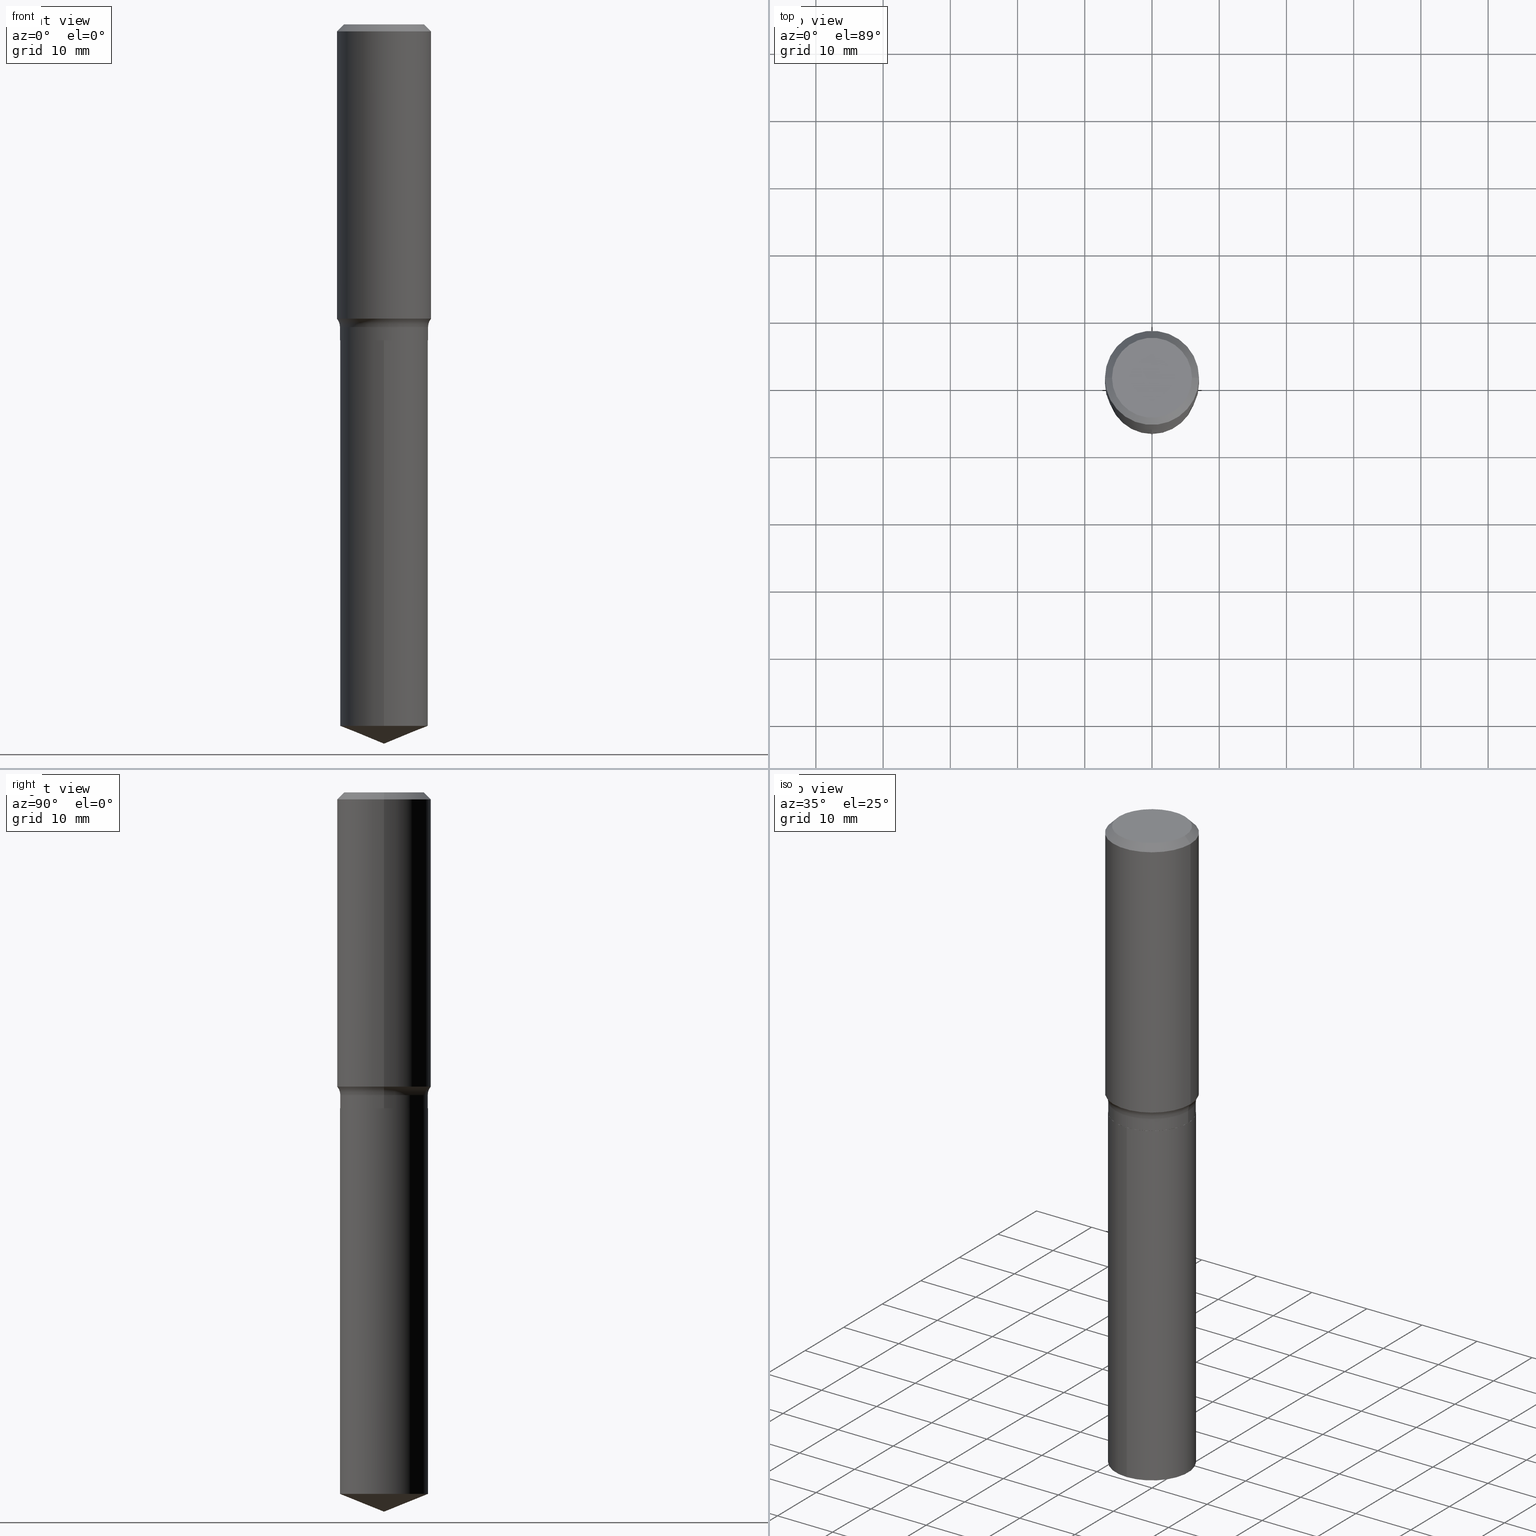
[diagram: canonical four-view strip — front | top / right | iso, engineering-drawing reading convention]
A machine part, canonical four-view strip (front | top / right | iso — engineering-drawing reading convention). The complete STEP part file that produces these views, byte-faithful:
ISO-10303-21;
HEADER;
FILE_DESCRIPTION (( 'STEP AP203' ),
    '1' );
FILE_NAME ('56829.STEP',
    '2024-04-19T14:13:09',
    ( '' ),
    ( '' ),
    'SwSTEP 2.0',
    'SolidWorks 2023',
    '' );
FILE_SCHEMA (( 'CONFIG_CONTROL_DESIGN' ));
ENDSEC;

DATA;
#1 = DIRECTION ( 'NONE',  ( 1.000000000000000000, -6.982962677686267499E-15, 0.000000000000000000 ) ) ;
#2 = SHAPE_DEFINITION_REPRESENTATION ( #178, #310 ) ;
#3 =( NAMED_UNIT ( * ) SI_UNIT ( $, .STERADIAN. ) SOLID_ANGLE_UNIT ( ) );
#4 = ORIENTED_EDGE ( 'NONE', *, *, #441, .F. ) ;
#5 = LINE ( 'NONE', #451, #53 ) ;
#6 = ADVANCED_FACE ( 'NONE', ( #456 ), #71, .T. ) ;
#7 = AXIS2_PLACEMENT_3D ( 'NONE', #192, #489, #1 ) ;
#8 = AXIS2_PLACEMENT_3D ( 'NONE', #478, #477, #404 ) ;
#9 = CARTESIAN_POINT ( 'NONE',  ( 1.010956804476941697E-30, -1.443378385477765070E-16, -0.04134000000000025155 ) ) ;
#10 = COORDINATED_UNIVERSAL_TIME_OFFSET ( 5, 0, .BEHIND. ) ;
#11 = DIRECTION ( 'NONE',  ( -2.445468806185136597E-29, 3.491481338843145583E-15, 1.000000000000000000 ) ) ;
#12 = DATE_AND_TIME ( #51, #295 ) ;
#13 = CARTESIAN_POINT ( 'NONE',  ( 1.831779172789583057E-15, 0.2577999999999935343, -1.850400000000001377 ) ) ;
#14 = VECTOR ( 'NONE', #120, 39.37007874015748143 ) ;
#15 = CC_DESIGN_APPROVAL ( #415, ( #95 ) ) ;
#16 = CARTESIAN_POINT ( 'NONE',  ( -1.002970424325033577E-46, 1.431975951230896486E-32, 4.101342130344485961E-18 ) ) ;
#17 = DIRECTION ( 'NONE',  ( 1.000000000000000000, -6.982962677686266711E-15, 0.000000000000000000 ) ) ;
#18 = DIRECTION ( 'NONE',  ( 1.000000000000000000, -6.982962677686267499E-15, 0.000000000000000000 ) ) ;
#19 = ADVANCED_FACE ( 'NONE', ( #375 ), #381, .F. ) ;
#20 = AXIS2_PLACEMENT_3D ( 'NONE', #16, #96, #247 ) ;
#21 = DIRECTION ( 'NONE',  ( -2.445468806185136877E-29, 3.491481338843145188E-15, 1.000000000000000000 ) ) ;
#22 = CARTESIAN_POINT ( 'NONE',  ( 4.214770417940949508E-29, -6.017575126916126124E-15, -1.723502016170009643 ) ) ;
#23 = ORIENTED_EDGE ( 'NONE', *, *, #475, .T. ) ;
#24 = ADVANCED_FACE ( 'NONE', ( #276 ), #313, .T. ) ;
#25 = DIRECTION ( 'NONE',  ( 1.000000000000000000, -6.982962677686266711E-15, 0.000000000000000000 ) ) ;
#26 = ORIENTED_EDGE ( 'NONE', *, *, #167, .F. ) ;
#27 = PERSON_AND_ORGANIZATION ( #459, #403 ) ;
#28 = VERTEX_POINT ( 'NONE', #122 ) ;
#29 = DIRECTION ( 'NONE',  ( -2.445479514057623274E-29, 3.491466004560290354E-15, 1.000000000000000000 ) ) ;
#30 = CIRCLE ( 'NONE', #312, 0.07800000000000002764 ) ;
#31 = EDGE_LOOP ( 'NONE', ( #330, #32, #111, #218 ) ) ;
#32 = ORIENTED_EDGE ( 'NONE', *, *, #102, .T. ) ;
#33 = LOCAL_TIME ( 10, 13, 9.000000000000000000, #367 ) ;
#34 = APPROVAL_ROLE ( '' ) ;
#35 = DIRECTION ( 'NONE',  ( -6.982962677686266711E-15, -1.000000000000000000, 3.498761904101793637E-15 ) ) ;
#36 = ORIENTED_EDGE ( 'NONE', *, *, #251, .F. ) ;
#37 = DIRECTION ( 'NONE',  ( -2.445479514057623274E-29, 3.491466004560290354E-15, 1.000000000000000000 ) ) ;
#38 = CC_DESIGN_PERSON_AND_ORGANIZATION_ASSIGNMENT ( #67, #221, ( #95 ) ) ;
#39 = AXIS2_PLACEMENT_3D ( 'NONE', #378, #347, #196 ) ;
#40 = VECTOR ( 'NONE', #69, 39.37007874015748854 ) ;
#41 = EDGE_CURVE ( 'NONE', #338, #261, #156, .T. ) ;
#42 = DIRECTION ( 'NONE',  ( -0.7071067811865453523, 2.468850131082234184E-15, -0.7071067811865496822 ) ) ;
#43 = EDGE_CURVE ( 'NONE', #45, #261, #447, .T. ) ;
#44 = DIRECTION ( 'NONE',  ( 2.445479514057622714E-29, -3.491466004560290748E-15, -1.000000000000000000 ) ) ;
#45 = VERTEX_POINT ( 'NONE', #305 ) ;
#46 = DIRECTION ( 'NONE',  ( 6.982962677686265922E-15, 1.000000000000000000, -3.491466004560290748E-15 ) ) ;
#47 = CLOSED_SHELL ( 'NONE', ( #86, #6, #90, #364, #146 ) ) ;
#48 = CARTESIAN_POINT ( 'NONE',  ( 1.010956804476941697E-30, -1.443378385477765070E-16, -0.04134000000000025155 ) ) ;
#49 = FACE_OUTER_BOUND ( 'NONE', #188, .T. ) ;
#50 = DIRECTION ( 'NONE',  ( -2.445468806185136597E-29, 3.491481338843145583E-15, 1.000000000000000000 ) ) ;
#51 = CALENDAR_DATE ( 2024, 19, 4 ) ;
#52 = ORIENTED_EDGE ( 'NONE', *, *, #269, .F. ) ;
#53 = VECTOR ( 'NONE', #417, 39.37007874015748143 ) ;
#54 = APPROVAL_PERSON_ORGANIZATION ( #371, #76, #159 ) ;
#55 = LINE ( 'NONE', #13, #163 ) ;
#56 = ORIENTED_EDGE ( 'NONE', *, *, #251, .T. ) ;
#57 = CARTESIAN_POINT ( 'NONE',  ( 0.000000000000000000, 0.000000000000000000, 0.000000000000000000 ) ) ;
#58 = ADVANCED_FACE ( 'NONE', ( #231 ), #239, .T. ) ;
#59 = ORIENTED_EDGE ( 'NONE', *, *, #486, .T. ) ;
#60 = CC_DESIGN_DATE_AND_TIME_ASSIGNMENT ( #151, #300, ( #153 ) ) ;
#61 = DIRECTION ( 'NONE',  ( -2.445468806185136877E-29, 3.491481338843145188E-15, 1.000000000000000000 ) ) ;
#62 = ORIENTED_EDGE ( 'NONE', *, *, #187, .T. ) ;
#63 = VECTOR ( 'NONE', #424, 39.37007874015748143 ) ;
#64 = DIRECTION ( 'NONE',  ( 2.445468806185136597E-29, -3.491481338843145583E-15, -1.000000000000000000 ) ) ;
#65 = ORIENTED_EDGE ( 'NONE', *, *, #283, .T. ) ;
#66 = DIRECTION ( 'NONE',  ( -2.445468806185136597E-29, 3.491481338843145583E-15, 1.000000000000000000 ) ) ;
#67 = PERSON_AND_ORGANIZATION ( #459, #403 ) ;
#68 = ORIENTED_EDGE ( 'NONE', *, *, #428, .T. ) ;
#69 = DIRECTION ( 'NONE',  ( -0.7071067811868130271, 7.493145998871311837E-15, 0.7071067811862817853 ) ) ;
#70 = CC_DESIGN_PERSON_AND_ORGANIZATION_ASSIGNMENT ( #233, #382, ( #153 ) ) ;
#71 = CONICAL_SURFACE ( 'NONE', #350, 97.44436430772937285, 1.186823891356148408 ) ;
#72 = ORIENTED_EDGE ( 'NONE', *, *, #78, .T. ) ;
#73 = AXIS2_PLACEMENT_3D ( 'NONE', #228, #266, #191 ) ;
#74 = DIRECTION ( 'NONE',  ( -2.445479514057623274E-29, 3.491466004560290354E-15, 1.000000000000000000 ) ) ;
#75 = VERTEX_POINT ( 'NONE', #270 ) ;
#76 = APPROVAL ( #308, 'UNSPECIFIED' ) ;
#77 = DIRECTION ( 'NONE',  ( -6.982962677686265922E-15, -1.000000000000000000, 4.238709066973255853E-15 ) ) ;
#78 = EDGE_CURVE ( 'NONE', #214, #28, #5, .T. ) ;
#79 = FACE_OUTER_BOUND ( 'NONE', #326, .T. ) ;
#80 = AXIS2_PLACEMENT_3D ( 'NONE', #92, #11, #17 ) ;
#81 = CIRCLE ( 'NONE', #186, 0.2577999999999999736 ) ;
#82 = APPROVAL_DATE_TIME ( #304, #76 ) ;
#83 = DIRECTION ( 'NONE',  ( -2.445468806185136597E-29, 3.491481338843145583E-15, 1.000000000000000000 ) ) ;
#84 = CARTESIAN_POINT ( 'NONE',  ( -1.800207778307474202E-15, -0.2578000000000064129, -1.850399999999999823 ) ) ;
#85 = CARTESIAN_POINT ( 'NONE',  ( 4.336060740246867168E-29, -6.190745561902783658E-15, -1.773100000000000565 ) ) ;
#86 = ADVANCED_FACE ( 'NONE', ( #234 ), #118, .T. ) ;
#87 = CONICAL_SURFACE ( 'NONE', #385, 97.44436430772937285, 1.186823891356148408 ) ;
#88 = LOCAL_TIME ( 10, 13, 9.000000000000000000, #121 ) ;
#89 = DIRECTION ( 'NONE',  ( -1.000000000000000000, 6.982962677686267499E-15, 0.000000000000000000 ) ) ;
#90 = ADVANCED_FACE ( 'NONE', ( #419 ), #87, .T. ) ;
#91 = CARTESIAN_POINT ( 'NONE',  ( 1.831779172789638672E-15, 0.2577999999999935343, -1.850400000000001155 ) ) ;
#92 = CARTESIAN_POINT ( 'NONE',  ( 4.525095478964976833E-29, -6.460637069395356787E-15, -1.850400000000000045 ) ) ;
#93 = ORIENTED_EDGE ( 'NONE', *, *, #283, .F. ) ;
#94 = EDGE_CURVE ( 'NONE', #461, #297, #464, .T. ) ;
#95 = SECURITY_CLASSIFICATION ( '', '', #331 ) ;
#96 = DIRECTION ( 'NONE',  ( -2.445468806185136597E-29, 3.491481338843145583E-15, 1.000000000000000000 ) ) ;
#97 = DIRECTION ( 'NONE',  ( -2.445468806185136597E-29, 3.491481338843145583E-15, 1.000000000000000000 ) ) ;
#98 = DIRECTION ( 'NONE',  ( 1.000000000000000000, -6.982962677686267499E-15, 4.876157962347795834E-29 ) ) ;
#99 = AXIS2_PLACEMENT_3D ( 'NONE', #232, #44, #46 ) ;
#100 = FACE_OUTER_BOUND ( 'NONE', #227, .T. ) ;
#101 = CIRCLE ( 'NONE', #380, 0.2577999999999999736 ) ;
#102 = EDGE_CURVE ( 'NONE', #28, #209, #274, .T. ) ;
#103 = VERTEX_POINT ( 'NONE', #199 ) ;
#104 = APPROVAL_DATE_TIME ( #12, #342 ) ;
#105 = ORIENTED_EDGE ( 'NONE', *, *, #353, .T. ) ;
#106 = EDGE_CURVE ( 'NONE', #209, #177, #278, .T. ) ;
#107 = LINE ( 'NONE', #185, #458 ) ;
#108 = DATE_AND_TIME ( #182, #33 ) ;
#109 = ORIENTED_EDGE ( 'NONE', *, *, #486, .F. ) ;
#110 = FACE_OUTER_BOUND ( 'NONE', #31, .T. ) ;
#111 = ORIENTED_EDGE ( 'NONE', *, *, #106, .T. ) ;
#112 = EDGE_CURVE ( 'NONE', #297, #461, #133, .T. ) ;
#113 = APPROVAL_STATUS ( 'not_yet_approved' ) ;
#114 = AXIS2_PLACEMENT_3D ( 'NONE', #285, #430, #132 ) ;
#115 = CIRCLE ( 'NONE', #124, 0.2756000000000002337 ) ;
#116 = CARTESIAN_POINT ( 'NONE',  ( -8.597691383881878923E-28, 1.227511134527540087E-13, 35.15747874015747954 ) ) ;
#117 = ORIENTED_EDGE ( 'NONE', *, *, #269, .T. ) ;
#118 = CYLINDRICAL_SURFACE ( 'NONE', #224, 0.2577999999999999736 ) ;
#119 = EDGE_LOOP ( 'NONE', ( #306, #255, #395 ) ) ;
#120 = DIRECTION ( 'NONE',  ( -2.445479514057622994E-29, 3.491466004560290748E-15, 1.000000000000000000 ) ) ;
#121 = COORDINATED_UNIVERSAL_TIME_OFFSET ( 5, 0, .BEHIND. ) ;
#122 = CARTESIAN_POINT ( 'NONE',  ( 1.831779172789637488E-15, 0.2577999999999855962, -4.108442038979699618 ) ) ;
#123 = CLOSED_SHELL ( 'NONE', ( #58, #317, #323, #290, #24, #235, #359, #272, #398, #19, #150, #410 ) ) ;
#124 = AXIS2_PLACEMENT_3D ( 'NONE', #135, #299, #399 ) ;
#125 = CARTESIAN_POINT ( 'NONE',  ( -8.597691383881878923E-28, 1.227511134527540087E-13, 35.15747874015747954 ) ) ;
#126 = DIRECTION ( 'NONE',  ( -2.445479514057622994E-29, 3.491466004560290748E-15, 1.000000000000000000 ) ) ;
#127 = CARTESIAN_POINT ( 'NONE',  ( 0.2577999999999999736, -7.990953340210303613E-15, -1.773100000000000565 ) ) ;
#128 = CYLINDRICAL_SURFACE ( 'NONE', #369, 0.2756000000000001227 ) ;
#129 = EDGE_LOOP ( 'NONE', ( #482, #72, #328 ) ) ;
#130 = DIRECTION ( 'NONE',  ( 2.445468806185136597E-29, -3.491481338843145583E-15, -1.000000000000000000 ) ) ;
#131 = EDGE_CURVE ( 'NONE', #338, #103, #449, .T. ) ;
#132 = DIRECTION ( 'NONE',  ( 1.000000000000000000, -6.982962677686266711E-15, 0.000000000000000000 ) ) ;
#133 = CIRCLE ( 'NONE', #39, 0.2577999999999999736 ) ;
#134 = CIRCLE ( 'NONE', #195, 0.2342600000000000238 ) ;
#135 = CARTESIAN_POINT ( 'NONE',  ( 4.214770417940949508E-29, -6.017575126916126124E-15, -1.723502016170009643 ) ) ;
#136 = ORIENTED_EDGE ( 'NONE', *, *, #112, .F. ) ;
#137 = DIRECTION ( 'NONE',  ( -2.445479514057623274E-29, 3.491466004560290354E-15, 1.000000000000000000 ) ) ;
#138 = ORIENTED_EDGE ( 'NONE', *, *, #387, .F. ) ;
#139 = DIRECTION ( 'NONE',  ( -2.445479514057623274E-29, 3.491466004560290354E-15, 1.000000000000000000 ) ) ;
#140 = ORIENTED_EDGE ( 'NONE', *, *, #441, .T. ) ;
#141 = VERTEX_POINT ( 'NONE', #236 ) ;
#142 = DIRECTION ( 'NONE',  ( -6.982962677686265922E-15, -1.000000000000000000, 3.179031800229941890E-15 ) ) ;
#143 = AXIS2_PLACEMENT_3D ( 'NONE', #176, #432, #25 ) ;
#144 = ORIENTED_EDGE ( 'NONE', *, *, #387, .T. ) ;
#145 = EDGE_LOOP ( 'NONE', ( #190, #406, #181, #162 ) ) ;
#146 = ADVANCED_FACE ( 'NONE', ( #79 ), #384, .F. ) ;
#147 = CARTESIAN_POINT ( 'NONE',  ( 0.2577999999999999736, -1.800207778307519561E-15, 1.257078372800192065E-29 ) ) ;
#148 = EDGE_LOOP ( 'NONE', ( #368, #401, #117, #480 ) ) ;
#149 = EDGE_LOOP ( 'NONE', ( #157, #26 ) ) ;
#150 = ADVANCED_FACE ( 'NONE', ( #202 ), #152, .F. ) ;
#151 = DATE_AND_TIME ( #337, #474 ) ;
#152 = PLANE ( 'NONE',  #294 ) ;
#153 = PRODUCT_DEFINITION ( 'UNKNOWN', '', #416, #374 ) ;
#154 = PERSON_AND_ORGANIZATION_ROLE ( 'design_owner' ) ;
#155 = TOROIDAL_SURFACE ( 'NONE', #349, 0.3357999999999999319, 0.07799999999999999989 ) ;
#156 = LINE ( 'NONE', #201, #63 ) ;
#157 = ORIENTED_EDGE ( 'NONE', *, *, #173, .F. ) ;
#158 = DIRECTION ( 'NONE',  ( 1.000000000000000000, -6.982962677686266711E-15, 0.000000000000000000 ) ) ;
#159 = APPROVAL_ROLE ( '' ) ;
#160 = DIRECTION ( 'NONE',  ( 7.105427357601001859E-15, 1.000000000000000000, -3.491481338843145583E-15 ) ) ;
#161 = DIRECTION ( 'NONE',  ( -1.000000000000000000, 6.982962677686265922E-15, -4.876176775795935793E-29 ) ) ;
#162 = ORIENTED_EDGE ( 'NONE', *, *, #353, .F. ) ;
#163 = VECTOR ( 'NONE', #126, 39.37007874015748143 ) ;
#164 = CC_DESIGN_SECURITY_CLASSIFICATION ( #95, ( #416 ) ) ;
#165 = FACE_OUTER_BOUND ( 'NONE', #145, .T. ) ;
#166 = CALENDAR_DATE ( 2024, 19, 4 ) ;
#167 = EDGE_CURVE ( 'NONE', #402, #444, #319, .T. ) ;
#168 = DIRECTION ( 'NONE',  ( 1.000000000000000000, -6.982962677686267499E-15, 4.876176775795935793E-29 ) ) ;
#169 = DIRECTION ( 'NONE',  ( -6.982962677686265922E-15, -1.000000000000000000, 4.238709066973255853E-15 ) ) ;
#170 = CIRCLE ( 'NONE', #20, 0.2342600000000000238 ) ;
#171 = CIRCLE ( 'NONE', #465, 0.2756000000000002337 ) ;
#172 = CYLINDRICAL_SURFACE ( 'NONE', #356, 0.2577999999999999736 ) ;
#173 = EDGE_CURVE ( 'NONE', #444, #402, #333, .T. ) ;
#174 = LINE ( 'NONE', #147, #287 ) ;
#175 = DIRECTION ( 'NONE',  ( 1.000000000000000000, -6.982962677686267499E-15, 0.000000000000000000 ) ) ;
#176 = CARTESIAN_POINT ( 'NONE',  ( 4.525095478964976833E-29, -6.460637069395356787E-15, -1.850400000000000045 ) ) ;
#177 = VERTEX_POINT ( 'NONE', #389 ) ;
#178 = PRODUCT_DEFINITION_SHAPE ( 'NONE', 'NONE',  #153 ) ;
#179 = DIRECTION ( 'NONE',  ( -6.982962677686265922E-15, -1.000000000000000000, 3.179031800229941890E-15 ) ) ;
#180 = CARTESIAN_POINT ( 'NONE',  ( -0.2572999999999999732, -4.632410610284619199E-15, -1.850400000000000045 ) ) ;
#181 = ORIENTED_EDGE ( 'NONE', *, *, #453, .T. ) ;
#182 = CALENDAR_DATE ( 2024, 19, 4 ) ;
#183 = ORIENTED_EDGE ( 'NONE', *, *, #94, .F. ) ;
#184 = AXIS2_PLACEMENT_3D ( 'NONE', #85, #352, #238 ) ;
#185 = CARTESIAN_POINT ( 'NONE',  ( 0.2572999999999999732, -8.257353366364032158E-15, -1.850400000000000045 ) ) ;
#186 = AXIS2_PLACEMENT_3D ( 'NONE', #296, #97, #18 ) ;
#187 = EDGE_CURVE ( 'NONE', #209, #28, #379, .T. ) ;
#188 = EDGE_LOOP ( 'NONE', ( #68, #263, #36, #483 ) ) ;
#189 = COORDINATED_UNIVERSAL_TIME_OFFSET ( 5, 0, .BEHIND. ) ;
#190 = ORIENTED_EDGE ( 'NONE', *, *, #41, .F. ) ;
#191 = DIRECTION ( 'NONE',  ( 1.000000000000000000, 0.000000000000000000, 0.000000000000000000 ) ) ;
#192 = CARTESIAN_POINT ( 'NONE',  ( 4.523872744561885153E-29, -6.458891328725936072E-15, -1.849900000000000322 ) ) ;
#193 = VERTEX_POINT ( 'NONE', #127 ) ;
#194 = MANIFOLD_SOLID_BREP ( 'Body-Move/Copy2[1]', #47 ) ;
#195 = AXIS2_PLACEMENT_3D ( 'NONE', #291, #66, #98 ) ;
#196 = DIRECTION ( 'NONE',  ( 1.000000000000000000, -6.982962677686267499E-15, 0.000000000000000000 ) ) ;
#197 = EDGE_CURVE ( 'NONE', #75, #45, #170, .T. ) ;
#198 =( CONVERSION_BASED_UNIT ( 'INCH', #377 ) LENGTH_UNIT ( ) NAMED_UNIT ( #249 ) );
#199 = CARTESIAN_POINT ( 'NONE',  ( -0.2577999999999999736, -4.493039272524821379E-15, -1.773100000000000565 ) ) ;
#200 = PERSON_AND_ORGANIZATION ( #459, #403 ) ;
#201 = CARTESIAN_POINT ( 'NONE',  ( -0.2756000000000001227, 1.958255779754836984E-15, -1.355658510874252567E-29 ) ) ;
#202 = FACE_OUTER_BOUND ( 'NONE', #149, .T. ) ;
#203 = CONICAL_SURFACE ( 'NONE', #472, 0.2756000000000000116, 0.7853981633974452814 ) ;
#204 = EDGE_CURVE ( 'NONE', #193, #103, #391, .T. ) ;
#205 = APPROVAL_PERSON_ORGANIZATION ( #446, #342, #237 ) ;
#206 = CARTESIAN_POINT ( 'NONE',  ( 8.640791961472701358E-29, -5.667254555480721292E-16, -1.850400000000000489 ) ) ;
#207 = CARTESIAN_POINT ( 'NONE',  ( 1.004709102717073275E-28, -1.434451408536097576E-14, -4.108442038979697841 ) ) ;
#208 = LINE ( 'NONE', #355, #286 ) ;
#209 = VERTEX_POINT ( 'NONE', #426 ) ;
#210 = CIRCLE ( 'NONE', #484, 0.2577999999999999736 ) ;
#211 = DIRECTION ( 'NONE',  ( -2.445468806185136597E-29, 3.491481338843145583E-15, 1.000000000000000000 ) ) ;
#212 = PRODUCT_RELATED_PRODUCT_CATEGORY ( 'detail', '', ( #307 ) ) ;
#213 = CARTESIAN_POINT ( 'NONE',  ( 1.010956804476941697E-30, -1.443378385477765070E-16, -0.04134000000000025155 ) ) ;
#214 = VERTEX_POINT ( 'NONE', #394 ) ;
#215 = DIRECTION ( 'NONE',  ( 1.000000000000000000, -6.982962677686266711E-15, 4.883557194083112901E-29 ) ) ;
#216 = AXIS2_PLACEMENT_3D ( 'NONE', #207, #244, #169 ) ;
#217 = CARTESIAN_POINT ( 'NONE',  ( 1.030178737322464713E-28, -1.470820643992466918E-14, -4.212600000000000122 ) ) ;
#218 = ORIENTED_EDGE ( 'NONE', *, *, #476, .F. ) ;
#219 = DIRECTION ( 'NONE',  ( -2.445468806185136597E-29, 3.491481338843145583E-15, 1.000000000000000000 ) ) ;
#220 = ORIENTED_EDGE ( 'NONE', *, *, #43, .F. ) ;
#221 = PERSON_AND_ORGANIZATION_ROLE ( 'classification_officer' ) ;
#222 = CARTESIAN_POINT ( 'NONE',  ( 4.525095478964977394E-29, -6.460637069395357576E-15, -1.850400000000000267 ) ) ;
#223 = EDGE_LOOP ( 'NONE', ( #490, #23, #56, #220 ) ) ;
#224 = AXIS2_PLACEMENT_3D ( 'NONE', #229, #311, #460 ) ;
#225 = APPLICATION_PROTOCOL_DEFINITION ( 'international standard', 'config_control_design', 1994, #407 ) ;
#226 = VECTOR ( 'NONE', #473, 39.37007874015748854 ) ;
#227 = EDGE_LOOP ( 'NONE', ( #336, #492, #59, #183 ) ) ;
#228 = CARTESIAN_POINT ( 'NONE',  ( 0.000000000000000000, 0.000000000000000000, 0.000000000000000000 ) ) ;
#229 = CARTESIAN_POINT ( 'NONE',  ( 4.525095478964977954E-29, -6.460637069395358365E-15, -1.850400000000000489 ) ) ;
#230 = ORIENTED_EDGE ( 'NONE', *, *, #94, .T. ) ;
#231 = FACE_OUTER_BOUND ( 'NONE', #418, .T. ) ;
#232 = CARTESIAN_POINT ( 'NONE',  ( 5.894333525188454118E-29, -4.499810255013529752E-15, -1.850400000000000489 ) ) ;
#233 = PERSON_AND_ORGANIZATION ( #459, #403 ) ;
#234 = FACE_OUTER_BOUND ( 'NONE', #293, .T. ) ;
#235 = ADVANCED_FACE ( 'NONE', ( #463 ), #172, .T. ) ;
#236 = CARTESIAN_POINT ( 'NONE',  ( 0.2756000000000000116, -2.068842352518111732E-15, -0.04134000000000025155 ) ) ;
#237 = APPROVAL_ROLE ( '' ) ;
#238 = DIRECTION ( 'NONE',  ( 1.000000000000000000, -6.982962677686267499E-15, 0.000000000000000000 ) ) ;
#239 = CONICAL_SURFACE ( 'NONE', #413, 0.2572999999999999732, 0.7853981633978239785 ) ;
#240 = AXIS2_PLACEMENT_3D ( 'NONE', #325, #219, #215 ) ;
#241 = CARTESIAN_POINT ( 'NONE',  ( 4.336060740246867168E-29, -6.190745561902783658E-15, -1.773100000000000565 ) ) ;
#242 = CARTESIAN_POINT ( 'NONE',  ( 0.000000000000000000, 0.000000000000000000, 0.000000000000000000 ) ) ;
#243 = ORIENTED_EDGE ( 'NONE', *, *, #476, .T. ) ;
#244 = DIRECTION ( 'NONE',  ( -2.445479514057623274E-29, 3.491466004560290354E-15, 1.000000000000000000 ) ) ;
#245 = AXIS2_PLACEMENT_3D ( 'NONE', #9, #282, #354 ) ;
#246 = CC_DESIGN_APPROVAL ( #76, ( #153 ) ) ;
#247 = DIRECTION ( 'NONE',  ( 1.000000000000000000, -6.982962677686267499E-15, 4.876157962347795834E-29 ) ) ;
#248 = APPLICATION_CONTEXT ( 'configuration controlled 3d designs of mechanical parts and assemblies' ) ;
#249 = DIMENSIONAL_EXPONENTS ( 1.000000000000000000, 0.000000000000000000, 0.000000000000000000, 0.000000000000000000, 0.000000000000000000, 0.000000000000000000, 0.000000000000000000 ) ;
#250 = FACE_OUTER_BOUND ( 'NONE', #452, .T. ) ;
#251 = EDGE_CURVE ( 'NONE', #141, #261, #421, .T. ) ;
#252 = CARTESIAN_POINT ( 'NONE',  ( -0.2572999999999999732, -4.629761383110508787E-15, -1.850400000000000045 ) ) ;
#253 = AXIS2_PLACEMENT_3D ( 'NONE', #491, #301, #454 ) ;
#254 = LINE ( 'NONE', #180, #40 ) ;
#255 = ORIENTED_EDGE ( 'NONE', *, *, #425, .T. ) ;
#256 = PERSON_AND_ORGANIZATION_ROLE ( 'creator' ) ;
#257 = EDGE_LOOP ( 'NONE', ( #409, #65, #268, #363 ) ) ;
#258 = EDGE_CURVE ( 'NONE', #28, #298, #55, .T. ) ;
#259 = CARTESIAN_POINT ( 'NONE',  ( 0.2572999999999999732, -8.257353366364032158E-15, -1.850400000000000045 ) ) ;
#260 = ORIENTED_EDGE ( 'NONE', *, *, #434, .F. ) ;
#261 = VERTEX_POINT ( 'NONE', #279 ) ;
#262 = APPROVAL_STATUS ( 'not_yet_approved' ) ;
#263 = ORIENTED_EDGE ( 'NONE', *, *, #41, .T. ) ;
#264 = CC_DESIGN_DATE_AND_TIME_ASSIGNMENT ( #108, #372, ( #95 ) ) ;
#265 = APPROVAL_PERSON_ORGANIZATION ( #27, #415, #34 ) ;
#266 = DIRECTION ( 'NONE',  ( 0.000000000000000000, 0.000000000000000000, 1.000000000000000000 ) ) ;
#267 = CARTESIAN_POINT ( 'NONE',  ( 4.525095478964976833E-29, -6.460637069395356787E-15, -1.850400000000000045 ) ) ;
#268 = ORIENTED_EDGE ( 'NONE', *, *, #204, .F. ) ;
#269 = EDGE_CURVE ( 'NONE', #332, #193, #30, .T. ) ;
#270 = CARTESIAN_POINT ( 'NONE',  ( 0.2342600000000000238, -1.821115673845785155E-15, 4.101342130356573868E-18 ) ) ;
#271 = DIRECTION ( 'NONE',  ( -2.445479514057623274E-29, 3.491466004560290354E-15, 1.000000000000000000 ) ) ;
#272 = ADVANCED_FACE ( 'NONE', ( #165 ), #128, .T. ) ;
#273 = CALENDAR_DATE ( 2024, 19, 4 ) ;
#274 = CIRCLE ( 'NONE', #457, 0.2577999999999999736 ) ;
#275 = VECTOR ( 'NONE', #61, 39.37007874015748143 ) ;
#276 = FACE_OUTER_BOUND ( 'NONE', #257, .T. ) ;
#277 = APPLICATION_PROTOCOL_DEFINITION ( 'international standard', 'config_control_design', 1994, #248 ) ;
#278 = LINE ( 'NONE', #84, #14 ) ;
#279 = CARTESIAN_POINT ( 'NONE',  ( -0.2756000000000000116, -1.122700702977114270E-15, -0.04134000000000025155 ) ) ;
#280 = DIRECTION ( 'NONE',  ( 1.000000000000000000, -6.982962677686268288E-15, 0.000000000000000000 ) ) ;
#281 =( GEOMETRIC_REPRESENTATION_CONTEXT ( 3 ) GLOBAL_UNCERTAINTY_ASSIGNED_CONTEXT ( ( #445 ) ) GLOBAL_UNIT_ASSIGNED_CONTEXT ( ( #198, #343, #3 ) ) REPRESENTATION_CONTEXT ( 'NONE', 'WORKASPACE' ) );
#282 = DIRECTION ( 'NONE',  ( -2.445468806185136597E-29, 3.491481338843145583E-15, 1.000000000000000000 ) ) ;
#283 = EDGE_CURVE ( 'NONE', #461, #103, #208, .T. ) ;
#284 = DIRECTION ( 'NONE',  ( 1.000000000000000000, -6.982962677686267499E-15, 4.876176775795935793E-29 ) ) ;
#285 = CARTESIAN_POINT ( 'NONE',  ( 4.525095478964976833E-29, -6.460637069395356787E-15, -1.850400000000000045 ) ) ;
#286 = VECTOR ( 'NONE', #462, 39.37007874015748143 ) ;
#287 = VECTOR ( 'NONE', #21, 39.37007874015748143 ) ;
#288 = DIRECTION ( 'NONE',  ( -1.000000000000000000, 6.982962677686267499E-15, 0.000000000000000000 ) ) ;
#289 = COORDINATED_UNIVERSAL_TIME_OFFSET ( 5, 0, .BEHIND. ) ;
#290 = ADVANCED_FACE ( 'NONE', ( #466 ), #155, .F. ) ;
#291 = CARTESIAN_POINT ( 'NONE',  ( -1.002970424325033577E-46, 1.431975951230896486E-32, 4.101342130344485961E-18 ) ) ;
#292 = LINE ( 'NONE', #435, #275 ) ;
#293 = EDGE_LOOP ( 'NONE', ( #62, #442, #4, #373 ) ) ;
#294 = AXIS2_PLACEMENT_3D ( 'NONE', #206, #322, #471 ) ;
#295 = LOCAL_TIME ( 10, 13, 9.000000000000000000, #289 ) ;
#296 = CARTESIAN_POINT ( 'NONE',  ( 4.336060740246867168E-29, -6.190745561902783658E-15, -1.773100000000000565 ) ) ;
#297 = VERTEX_POINT ( 'NONE', #468 ) ;
#298 = VERTEX_POINT ( 'NONE', #91 ) ;
#299 = DIRECTION ( 'NONE',  ( -2.445468806185136597E-29, 3.491481338843145583E-15, 1.000000000000000000 ) ) ;
#300 = DATE_TIME_ROLE ( 'creation_date' ) ;
#301 = DIRECTION ( 'NONE',  ( -2.445468806185136597E-29, 3.491481338843145583E-15, 1.000000000000000000 ) ) ;
#302 = ORIENTED_EDGE ( 'NONE', *, *, #131, .T. ) ;
#303 = TOROIDAL_SURFACE ( 'NONE', #240, 0.3357999999999999319, 0.07799999999999999989 ) ;
#304 = DATE_AND_TIME ( #273, #88 ) ;
#305 = CARTESIAN_POINT ( 'NONE',  ( -0.2342600000000000238, 1.707997756148671759E-15, 4.101342130332794026E-18 ) ) ;
#306 = ORIENTED_EDGE ( 'NONE', *, *, #78, .F. ) ;
#307 = PRODUCT ( '56829', '56829', '', ( #339 ) ) ;
#308 = APPROVAL_STATUS ( 'not_yet_approved' ) ;
#309 = DIRECTION ( 'NONE',  ( 2.438088387897960049E-29, -3.491481338843145188E-15, -1.000000000000000000 ) ) ;
#310 = ADVANCED_BREP_SHAPE_REPRESENTATION ( '56829', ( #194, #366, #73 ), #281 ) ;
#311 = DIRECTION ( 'NONE',  ( -2.445479514057623274E-29, 3.491466004560290354E-15, 1.000000000000000000 ) ) ;
#312 = AXIS2_PLACEMENT_3D ( 'NONE', #316, #318, #280 ) ;
#313 = CYLINDRICAL_SURFACE ( 'NONE', #253, 0.2577999999999999736 ) ;
#314 = ORIENTED_EDGE ( 'NONE', *, *, #393, .F. ) ;
#315 = DIRECTION ( 'NONE',  ( 1.000000000000000000, -6.982962677686267499E-15, 4.876176775795935793E-29 ) ) ;
#316 = CARTESIAN_POINT ( 'NONE',  ( 0.3357999999999999319, -8.535624429069831660E-15, -1.773100000000000565 ) ) ;
#317 = ADVANCED_FACE ( 'NONE', ( #388 ), #203, .T. ) ;
#318 = DIRECTION ( 'NONE',  ( -6.982962677686266711E-15, -1.000000000000000000, 3.491481338843145583E-15 ) ) ;
#319 = CIRCLE ( 'NONE', #80, 0.2572999999999999732 ) ;
#320 = VECTOR ( 'NONE', #481, 39.37007874015748143 ) ;
#321 = DIRECTION ( 'NONE',  ( 1.000000000000000000, -6.982962677686266711E-15, 4.883557194083112901E-29 ) ) ;
#322 = DIRECTION ( 'NONE',  ( -2.438088387897960049E-29, 3.491481338843145188E-15, 1.000000000000000000 ) ) ;
#323 = ADVANCED_FACE ( 'NONE', ( #49 ), #390, .T. ) ;
#324 = CC_DESIGN_PERSON_AND_ORGANIZATION_ASSIGNMENT ( #200, #154, ( #307 ) ) ;
#325 = CARTESIAN_POINT ( 'NONE',  ( 4.336060740246867168E-29, -6.190745561902783658E-15, -1.773100000000000565 ) ) ;
#326 = EDGE_LOOP ( 'NONE', ( #140, #243 ) ) ;
#327 = DIRECTION ( 'NONE',  ( -6.982962677686265922E-15, -1.000000000000000000, 3.179031800229941890E-15 ) ) ;
#328 = ORIENTED_EDGE ( 'NONE', *, *, #187, .F. ) ;
#329 = LINE ( 'NONE', #439, #320 ) ;
#330 = ORIENTED_EDGE ( 'NONE', *, *, #258, .F. ) ;
#331 = SECURITY_CLASSIFICATION_LEVEL ( 'unclassified' ) ;
#332 = VERTEX_POINT ( 'NONE', #358 ) ;
#333 = CIRCLE ( 'NONE', #114, 0.2572999999999999732 ) ;
#334 = CIRCLE ( 'NONE', #8, 0.2756000000000000116 ) ;
#335 = DIRECTION ( 'NONE',  ( 0.7071067811868130271, -2.468850131085038979E-15, 0.7071067811862817853 ) ) ;
#336 = ORIENTED_EDGE ( 'NONE', *, *, #469, .F. ) ;
#337 = CALENDAR_DATE ( 2024, 19, 4 ) ;
#338 = VERTEX_POINT ( 'NONE', #429 ) ;
#339 = MECHANICAL_CONTEXT ( 'NONE', #248, 'mechanical' ) ;
#340 = DIRECTION ( 'NONE',  ( -1.000000000000000000, 7.105427357601001859E-15, 0.000000000000000000 ) ) ;
#341 = ORIENTED_EDGE ( 'NONE', *, *, #469, .T. ) ;
#342 = APPROVAL ( #113, 'UNSPECIFIED' ) ;
#343 =( NAMED_UNIT ( * ) PLANE_ANGLE_UNIT ( ) SI_UNIT ( $, .RADIAN. ) );
#344 = DIRECTION ( 'NONE',  ( -6.982962677686266711E-15, -1.000000000000000000, 3.498761904101793637E-15 ) ) ;
#345 = DATE_AND_TIME ( #166, #370 ) ;
#346 = EDGE_CURVE ( 'NONE', #297, #193, #174, .T. ) ;
#347 = DIRECTION ( 'NONE',  ( -2.445468806185136597E-29, 3.491481338843145583E-15, 1.000000000000000000 ) ) ;
#348 = CARTESIAN_POINT ( 'NONE',  ( -0.2756000000000000116, 1.780166675422558965E-15, -0.04134000000000025155 ) ) ;
#349 = AXIS2_PLACEMENT_3D ( 'NONE', #241, #386, #321 ) ;
#350 = AXIS2_PLACEMENT_3D ( 'NONE', #116, #37, #344 ) ;
#351 = DIRECTION ( 'NONE',  ( -2.445468806185136597E-29, 3.491481338843145583E-15, 1.000000000000000000 ) ) ;
#352 = DIRECTION ( 'NONE',  ( -2.445468806185136597E-29, 3.491481338843145583E-15, 1.000000000000000000 ) ) ;
#353 = EDGE_CURVE ( 'NONE', #261, #141, #334, .T. ) ;
#354 = DIRECTION ( 'NONE',  ( 1.000000000000000000, -6.982962677686267499E-15, 0.000000000000000000 ) ) ;
#355 = CARTESIAN_POINT ( 'NONE',  ( -0.2577999999999999736, 1.831779172789538092E-15, -1.268101466267714686E-29 ) ) ;
#356 = AXIS2_PLACEMENT_3D ( 'NONE', #57, #351, #168 ) ;
#357 = AXIS2_PLACEMENT_3D ( 'NONE', #485, #137, #179 ) ;
#358 = CARTESIAN_POINT ( 'NONE',  ( 0.2756000000000002892, -7.942079640886463444E-15, -1.723502016170009643 ) ) ;
#359 = ADVANCED_FACE ( 'NONE', ( #362 ), #303, .F. ) ;
#360 = CARTESIAN_POINT ( 'NONE',  ( 4.525095478964977394E-29, -6.460637069395357576E-15, -1.850400000000000267 ) ) ;
#361 = AXIS2_PLACEMENT_3D ( 'NONE', #420, #160, #340 ) ;
#362 = FACE_OUTER_BOUND ( 'NONE', #148, .T. ) ;
#363 = ORIENTED_EDGE ( 'NONE', *, *, #346, .F. ) ;
#364 = ADVANCED_FACE ( 'NONE', ( #110 ), #433, .T. ) ;
#365 = DIRECTION ( 'NONE',  ( -2.445468806185136597E-29, 3.491481338843145583E-15, 1.000000000000000000 ) ) ;
#366 = MANIFOLD_SOLID_BREP ( 'Body-Move/Copy2[2]', #123 ) ;
#367 = COORDINATED_UNIVERSAL_TIME_OFFSET ( 5, 0, .BEHIND. ) ;
#368 = ORIENTED_EDGE ( 'NONE', *, *, #131, .F. ) ;
#369 = AXIS2_PLACEMENT_3D ( 'NONE', #427, #50, #315 ) ;
#370 = LOCAL_TIME ( 10, 13, 9.000000000000000000, #10 ) ;
#371 = PERSON_AND_ORGANIZATION ( #459, #403 ) ;
#372 = DATE_TIME_ROLE ( 'classification_date' ) ;
#373 = ORIENTED_EDGE ( 'NONE', *, *, #106, .F. ) ;
#374 = DESIGN_CONTEXT ( 'detailed design', #407, 'design' ) ;
#375 = FACE_OUTER_BOUND ( 'NONE', #479, .T. ) ;
#376 = ORIENTED_EDGE ( 'NONE', *, *, #43, .T. ) ;
#377 = LENGTH_MEASURE_WITH_UNIT ( LENGTH_MEASURE( 0.02539999999999999897 ), #411 );
#378 = CARTESIAN_POINT ( 'NONE',  ( 4.523872744561885153E-29, -6.458891328725936072E-15, -1.849900000000000322 ) ) ;
#379 = CIRCLE ( 'NONE', #216, 0.2577999999999999736 ) ;
#380 = AXIS2_PLACEMENT_3D ( 'NONE', #222, #29, #142 ) ;
#381 = PLANE ( 'NONE',  #400 ) ;
#382 = PERSON_AND_ORGANIZATION_ROLE ( 'creator' ) ;
#383 = CARTESIAN_POINT ( 'NONE',  ( 1.004709102717073275E-28, -1.434451408536097576E-14, -4.108442038979697841 ) ) ;
#384 = PLANE ( 'NONE',  #99 ) ;
#385 = AXIS2_PLACEMENT_3D ( 'NONE', #125, #74, #35 ) ;
#386 = DIRECTION ( 'NONE',  ( -2.445468806185136597E-29, 3.491481338843145583E-15, 1.000000000000000000 ) ) ;
#387 = EDGE_CURVE ( 'NONE', #45, #75, #134, .T. ) ;
#388 = FACE_OUTER_BOUND ( 'NONE', #223, .T. ) ;
#389 = CARTESIAN_POINT ( 'NONE',  ( -1.800207778307474202E-15, -0.2578000000000064129, -1.850399999999999379 ) ) ;
#390 = CYLINDRICAL_SURFACE ( 'NONE', #422, 0.2756000000000001227 ) ;
#391 = CIRCLE ( 'NONE', #184, 0.2577999999999999736 ) ;
#392 = CC_DESIGN_APPROVAL ( #342, ( #416 ) ) ;
#393 = EDGE_CURVE ( 'NONE', #103, #193, #81, .T. ) ;
#394 = CARTESIAN_POINT ( 'NONE',  ( 1.030182700091914490E-28, -1.470814969081067906E-14, -4.212600000000000122 ) ) ;
#395 = ORIENTED_EDGE ( 'NONE', *, *, #102, .F. ) ;
#396 = CC_DESIGN_PERSON_AND_ORGANIZATION_ASSIGNMENT ( #405, #443, ( #416 ) ) ;
#397 = CARTESIAN_POINT ( 'NONE',  ( -0.2577999999999999736, -4.493039272524821379E-15, -1.849900000000000322 ) ) ;
#398 = ADVANCED_FACE ( 'NONE', ( #250 ), #450, .T. ) ;
#399 = DIRECTION ( 'NONE',  ( 1.000000000000000000, -6.982962677686267499E-15, 0.000000000000000000 ) ) ;
#400 = AXIS2_PLACEMENT_3D ( 'NONE', #423, #309, #161 ) ;
#401 = ORIENTED_EDGE ( 'NONE', *, *, #428, .F. ) ;
#402 = VERTEX_POINT ( 'NONE', #252 ) ;
#403 = ORGANIZATION ( 'UNSPECIFIED', 'UNSPECIFIED', '' ) ;
#404 = DIRECTION ( 'NONE',  ( 1.000000000000000000, -6.982962677686267499E-15, 0.000000000000000000 ) ) ;
#405 = PERSON_AND_ORGANIZATION ( #459, #403 ) ;
#406 = ORIENTED_EDGE ( 'NONE', *, *, #434, .T. ) ;
#407 = APPLICATION_CONTEXT ( 'configuration controlled 3d designs of mechanical parts and assemblies' ) ;
#408 = LINE ( 'NONE', #217, #226 ) ;
#409 = ORIENTED_EDGE ( 'NONE', *, *, #112, .T. ) ;
#410 = ADVANCED_FACE ( 'NONE', ( #100 ), #438, .T. ) ;
#411 =( LENGTH_UNIT ( ) NAMED_UNIT ( * ) SI_UNIT ( $, .METRE. ) );
#412 = ORIENTED_EDGE ( 'NONE', *, *, #475, .F. ) ;
#413 = AXIS2_PLACEMENT_3D ( 'NONE', #267, #83, #158 ) ;
#414 = AXIS2_PLACEMENT_3D ( 'NONE', #213, #64, #288 ) ;
#415 = APPROVAL ( #262, 'UNSPECIFIED' ) ;
#416 = PRODUCT_DEFINITION_FORMATION_WITH_SPECIFIED_SOURCE ( 'ANY', '', #307, .NOT_KNOWN. ) ;
#417 = DIRECTION ( 'NONE',  ( 6.588037525764800757E-15, 0.9271838545667901998, 0.3746065934159048538 ) ) ;
#418 = EDGE_LOOP ( 'NONE', ( #488, #341, #136, #109 ) ) ;
#419 = FACE_OUTER_BOUND ( 'NONE', #119, .T. ) ;
#420 = CARTESIAN_POINT ( 'NONE',  ( -0.3357999999999999319, -3.804743055220367323E-15, -1.773100000000000565 ) ) ;
#421 = CIRCLE ( 'NONE', #245, 0.2756000000000000116 ) ;
#422 = AXIS2_PLACEMENT_3D ( 'NONE', #242, #211, #284 ) ;
#423 = CARTESIAN_POINT ( 'NONE',  ( -5.014852121625167883E-47, 7.159879756154482429E-33, 2.050671065172242981E-18 ) ) ;
#424 = DIRECTION ( 'NONE',  ( -2.445468806185136877E-29, 3.491481338843145188E-15, 1.000000000000000000 ) ) ;
#425 = EDGE_CURVE ( 'NONE', #214, #209, #408, .T. ) ;
#426 = CARTESIAN_POINT ( 'NONE',  ( -1.800207778307418587E-15, -0.2578000000000142400, -4.108442038979696953 ) ) ;
#427 = CARTESIAN_POINT ( 'NONE',  ( 0.000000000000000000, 0.000000000000000000, 0.000000000000000000 ) ) ;
#428 = EDGE_CURVE ( 'NONE', #332, #338, #115, .T. ) ;
#429 = CARTESIAN_POINT ( 'NONE',  ( -0.2756000000000002892, -4.059319347161287957E-15, -1.723502016170009643 ) ) ;
#430 = DIRECTION ( 'NONE',  ( -2.445468806185136597E-29, 3.491481338843145583E-15, 1.000000000000000000 ) ) ;
#431 = VECTOR ( 'NONE', #42, 39.37007874015748143 ) ;
#432 = DIRECTION ( 'NONE',  ( -2.445468806185136597E-29, 3.491481338843145583E-15, 1.000000000000000000 ) ) ;
#433 = CYLINDRICAL_SURFACE ( 'NONE', #357, 0.2577999999999999736 ) ;
#434 = EDGE_CURVE ( 'NONE', #338, #332, #171, .T. ) ;
#435 = CARTESIAN_POINT ( 'NONE',  ( 0.2756000000000001227, -1.924504513970336137E-15, 1.343874319409360548E-29 ) ) ;
#436 = ORIENTED_EDGE ( 'NONE', *, *, #393, .T. ) ;
#437 = ORIENTED_EDGE ( 'NONE', *, *, #346, .T. ) ;
#438 = CONICAL_SURFACE ( 'NONE', #143, 0.2572999999999999732, 0.7853981633978239785 ) ;
#439 = CARTESIAN_POINT ( 'NONE',  ( 0.2756000000000000116, -2.035091086733610886E-15, -0.04134000000000025155 ) ) ;
#440 = EDGE_LOOP ( 'NONE', ( #260, #302, #436, #52 ) ) ;
#441 = EDGE_CURVE ( 'NONE', #177, #298, #210, .T. ) ;
#442 = ORIENTED_EDGE ( 'NONE', *, *, #258, .T. ) ;
#443 = PERSON_AND_ORGANIZATION_ROLE ( 'design_supplier' ) ;
#444 = VERTEX_POINT ( 'NONE', #259 ) ;
#445 = UNCERTAINTY_MEASURE_WITH_UNIT (LENGTH_MEASURE( 1.000000000000000082E-05 ), #198, 'distance_accuracy_value', 'NONE');
#446 = PERSON_AND_ORGANIZATION ( #459, #403 ) ;
#447 = LINE ( 'NONE', #348, #431 ) ;
#448 = ORIENTED_EDGE ( 'NONE', *, *, #197, .T. ) ;
#449 = CIRCLE ( 'NONE', #361, 0.07800000000000002764 ) ;
#450 = CONICAL_SURFACE ( 'NONE', #414, 0.2756000000000000116, 0.7853981633974452814 ) ;
#451 = CARTESIAN_POINT ( 'NONE',  ( 1.030182734840724814E-28, -1.470814969081067906E-14, -4.212600000000000122 ) ) ;
#452 = EDGE_LOOP ( 'NONE', ( #412, #138, #376, #105 ) ) ;
#453 = EDGE_CURVE ( 'NONE', #332, #141, #292, .T. ) ;
#454 = DIRECTION ( 'NONE',  ( 1.000000000000000000, -6.982962677686267499E-15, 4.876176775795935793E-29 ) ) ;
#455 = APPROVAL_DATE_TIME ( #345, #415 ) ;
#456 = FACE_OUTER_BOUND ( 'NONE', #129, .T. ) ;
#457 = AXIS2_PLACEMENT_3D ( 'NONE', #383, #271, #77 ) ;
#458 = VECTOR ( 'NONE', #335, 39.37007874015748854 ) ;
#459 = PERSON ( 'UNSPECIFIED', 'UNSPECIFIED', 'UNSPECIFIED', ('UNSPECIFIED'), ('UNSPECIFIED'), ('UNSPECIFIED') ) ;
#460 = DIRECTION ( 'NONE',  ( -6.982962677686265922E-15, -1.000000000000000000, 3.179031800229941890E-15 ) ) ;
#461 = VERTEX_POINT ( 'NONE', #397 ) ;
#462 = DIRECTION ( 'NONE',  ( -2.445468806185136877E-29, 3.491481338843145188E-15, 1.000000000000000000 ) ) ;
#463 = FACE_OUTER_BOUND ( 'NONE', #467, .T. ) ;
#464 = CIRCLE ( 'NONE', #7, 0.2577999999999999736 ) ;
#465 = AXIS2_PLACEMENT_3D ( 'NONE', #22, #365, #175 ) ;
#466 = FACE_OUTER_BOUND ( 'NONE', #440, .T. ) ;
#467 = EDGE_LOOP ( 'NONE', ( #93, #230, #437, #314 ) ) ;
#468 = CARTESIAN_POINT ( 'NONE',  ( 0.2577999999999999736, -8.259099107033456028E-15, -1.849900000000000322 ) ) ;
#469 = EDGE_CURVE ( 'NONE', #402, #461, #254, .T. ) ;
#470 = CC_DESIGN_PERSON_AND_ORGANIZATION_ASSIGNMENT ( #487, #256, ( #416 ) ) ;
#471 = DIRECTION ( 'NONE',  ( 1.000000000000000000, -6.982962677686265922E-15, 4.876176775795935793E-29 ) ) ;
#472 = AXIS2_PLACEMENT_3D ( 'NONE', #48, #130, #89 ) ;
#473 = DIRECTION ( 'NONE',  ( -6.474490251793187306E-15, -0.9271838545667877574, 0.3746065934159112931 ) ) ;
#474 = LOCAL_TIME ( 10, 13, 9.000000000000000000, #189 ) ;
#475 = EDGE_CURVE ( 'NONE', #75, #141, #329, .T. ) ;
#476 = EDGE_CURVE ( 'NONE', #298, #177, #101, .T. ) ;
#477 = DIRECTION ( 'NONE',  ( -2.445468806185136597E-29, 3.491481338843145583E-15, 1.000000000000000000 ) ) ;
#478 = CARTESIAN_POINT ( 'NONE',  ( 1.010956804476941697E-30, -1.443378385477765070E-16, -0.04134000000000025155 ) ) ;
#479 = EDGE_LOOP ( 'NONE', ( #144, #448 ) ) ;
#480 = ORIENTED_EDGE ( 'NONE', *, *, #204, .T. ) ;
#481 = DIRECTION ( 'NONE',  ( 0.7071067811865453523, -7.319954787623248157E-15, -0.7071067811865496822 ) ) ;
#482 = ORIENTED_EDGE ( 'NONE', *, *, #425, .F. ) ;
#483 = ORIENTED_EDGE ( 'NONE', *, *, #453, .F. ) ;
#484 = AXIS2_PLACEMENT_3D ( 'NONE', #360, #139, #327 ) ;
#485 = CARTESIAN_POINT ( 'NONE',  ( 4.525095478964977954E-29, -6.460637069395358365E-15, -1.850400000000000489 ) ) ;
#486 = EDGE_CURVE ( 'NONE', #444, #297, #107, .T. ) ;
#487 = PERSON_AND_ORGANIZATION ( #459, #403 ) ;
#488 = ORIENTED_EDGE ( 'NONE', *, *, #173, .T. ) ;
#489 = DIRECTION ( 'NONE',  ( -2.445468806185136597E-29, 3.491481338843145583E-15, 1.000000000000000000 ) ) ;
#490 = ORIENTED_EDGE ( 'NONE', *, *, #197, .F. ) ;
#491 = CARTESIAN_POINT ( 'NONE',  ( 0.000000000000000000, 0.000000000000000000, 0.000000000000000000 ) ) ;
#492 = ORIENTED_EDGE ( 'NONE', *, *, #167, .T. ) ;
ENDSEC;
END-ISO-10303-21;
